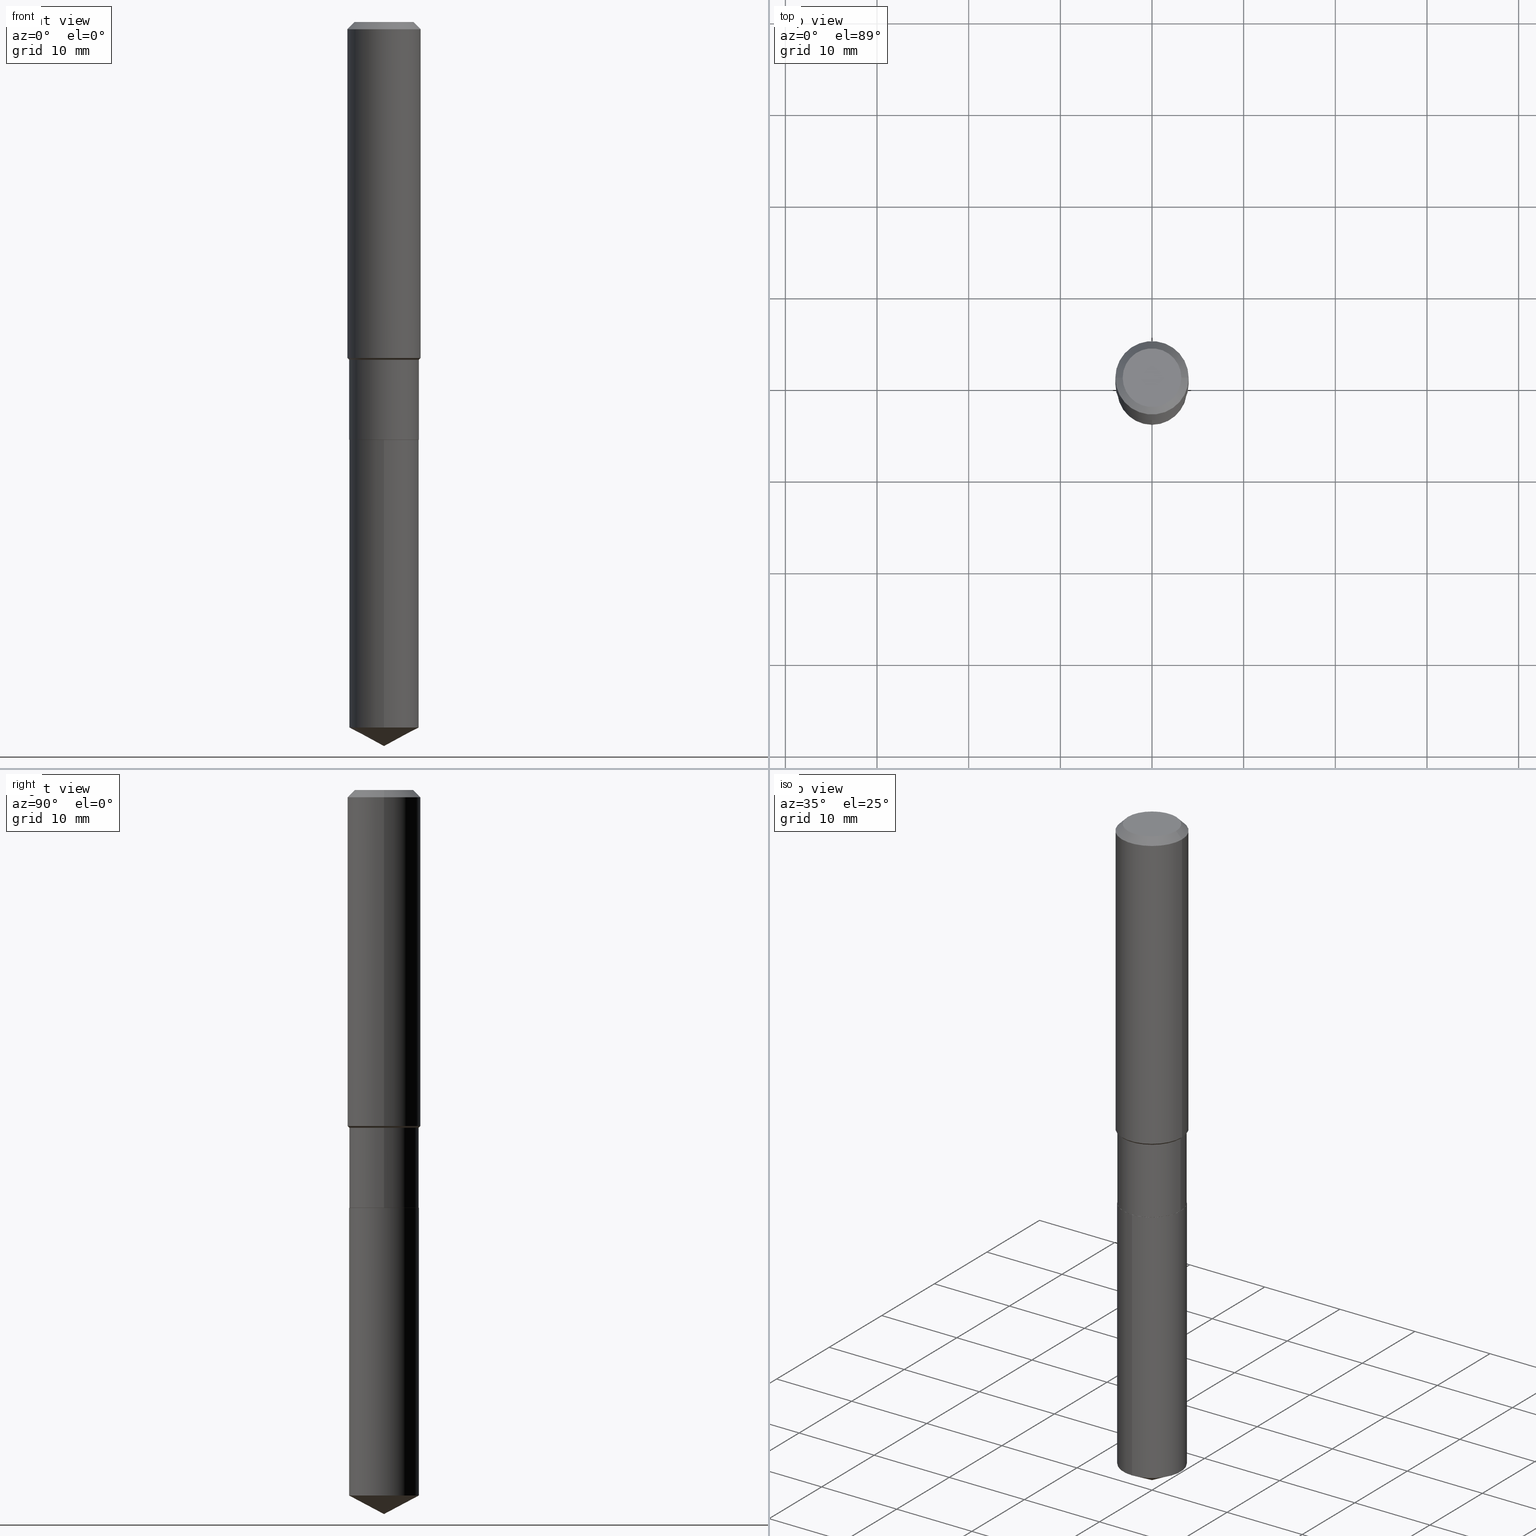
[diagram: canonical four-view strip — front | top / right | iso, engineering-drawing reading convention]
A machine part, canonical four-view strip (front | top / right | iso — engineering-drawing reading convention). The complete STEP part file that produces these views, byte-faithful:
ISO-10303-21;
HEADER;
FILE_DESCRIPTION (( 'STEP AP203' ),
    '1' );
FILE_NAME ('64646.STEP',
    '2024-04-24T18:34:17',
    ( '' ),
    ( '' ),
    'SwSTEP 2.0',
    'SolidWorks 2023',
    '' );
FILE_SCHEMA (( 'CONFIG_CONTROL_DESIGN' ));
ENDSEC;

DATA;
#1 = ORIENTED_EDGE ( 'NONE', *, *, #132, .F. ) ;
#2 = DIRECTION ( 'NONE',  ( -2.445338852307477457E-29, 3.491667440192468911E-15, 1.000000000000000000 ) ) ;
#3 = CARTESIAN_POINT ( 'NONE',  ( 3.548619784655251556E-29, -5.066488570795288817E-15, -1.451100000000000056 ) ) ;
#4 = CIRCLE ( 'NONE', #166, 0.1495999999999999830 ) ;
#5 = ORIENTED_EDGE ( 'NONE', *, *, #50, .F. ) ;
#6 = EDGE_CURVE ( 'NONE', #382, #379, #113, .T. ) ;
#7 = LOCAL_TIME ( 14, 34, 17.00000000000000000, #254 ) ;
#8 = DIRECTION ( 'NONE',  ( -2.438088387897960049E-29, 3.491481338843145188E-15, 1.000000000000000000 ) ) ;
#9 = DIRECTION ( 'NONE',  ( -1.000000000000000000, 6.982962677686265922E-15, 0.000000000000000000 ) ) ;
#10 = ORIENTED_EDGE ( 'NONE', *, *, #334, .T. ) ;
#11 = EDGE_CURVE ( 'NONE', #199, #16, #301, .T. ) ;
#12 = DIRECTION ( 'NONE',  ( -2.445468806185136597E-29, 3.491481338843145583E-15, 1.000000000000000000 ) ) ;
#13 = VERTEX_POINT ( 'NONE', #441 ) ;
#14 = EDGE_CURVE ( 'NONE', #126, #358, #354, .T. ) ;
#15 = CARTESIAN_POINT ( 'NONE',  ( -9.439721640706201686E-47, 1.347742071746726764E-32, 3.860086710912459732E-18 ) ) ;
#16 = VERTEX_POINT ( 'NONE', #341 ) ;
#17 = VERTEX_POINT ( 'NONE', #267 ) ;
#18 = CIRCLE ( 'NONE', #391, 0.1575000000000001676 ) ;
#19 = DIRECTION ( 'NONE',  ( 1.000000000000000000, -6.982962677686265922E-15, 0.000000000000000000 ) ) ;
#20 = PRODUCT_RELATED_PRODUCT_CATEGORY ( 'detail', '', ( #163 ) ) ;
#21 = VERTEX_POINT ( 'NONE', #150 ) ;
#22 = CARTESIAN_POINT ( 'NONE',  ( 7.703226739483226971E-31, -1.099816621735597538E-16, -0.03150000000000019451 ) ) ;
#23 = DIRECTION ( 'NONE',  ( -2.445338852307477457E-29, 3.491667440192468911E-15, 1.000000000000000000 ) ) ;
#24 = EDGE_CURVE ( 'NONE', #471, #17, #307, .T. ) ;
#25 = AXIS2_PLACEMENT_3D ( 'NONE', #249, #416, #326 ) ;
#26 = PERSON_AND_ORGANIZATION ( #194, #220 ) ;
#27 = CC_DESIGN_APPROVAL ( #176, ( #264 ) ) ;
#28 = APPLICATION_PROTOCOL_DEFINITION ( 'international standard', 'config_control_design', 1994, #151 ) ;
#29 = ORIENTED_EDGE ( 'NONE', *, *, #482, .F. ) ;
#30 = VECTOR ( 'NONE', #425, 39.37007874015748143 ) ;
#31 = CONICAL_SURFACE ( 'NONE', #452, 0.1491000000000000103, 0.7853981633978239785 ) ;
#32 = ORIENTED_EDGE ( 'NONE', *, *, #247, .F. ) ;
#33 = ADVANCED_BREP_SHAPE_REPRESENTATION ( '64646', ( #324, #328, #332 ), #432 ) ;
#34 = LINE ( 'NONE', #322, #437 ) ;
#35 = CYLINDRICAL_SURFACE ( 'NONE', #271, 0.1495999999999999830 ) ;
#36 = DIRECTION ( 'NONE',  ( 1.000000000000000000, -6.982962677686267499E-15, 0.000000000000000000 ) ) ;
#37 = AXIS2_PLACEMENT_3D ( 'NONE', #392, #48, #19 ) ;
#38 = ORIENTED_EDGE ( 'NONE', *, *, #69, .T. ) ;
#39 = ADVANCED_FACE ( 'NONE', ( #147 ), #212, .T. ) ;
#40 = CARTESIAN_POINT ( 'NONE',  ( 0.1575000000000000011, -1.209798283909146741E-15, -0.03150000000000019451 ) ) ;
#41 = CARTESIAN_POINT ( 'NONE',  ( 0.1495999999999999830, -6.111139787377153629E-15, -1.451100000000000056 ) ) ;
#42 = EDGE_LOOP ( 'NONE', ( #216, #38, #5 ) ) ;
#43 = DIRECTION ( 'NONE',  ( -2.445468806185136597E-29, 3.491481338843145583E-15, 1.000000000000000000 ) ) ;
#44 = ORIENTED_EDGE ( 'NONE', *, *, #95, .F. ) ;
#45 = APPLICATION_CONTEXT ( 'configuration controlled 3d designs of mechanical parts and assemblies' ) ;
#46 = CC_DESIGN_DATE_AND_TIME_ASSIGNMENT ( #483, #215, ( #264 ) ) ;
#47 = CARTESIAN_POINT ( 'NONE',  ( 0.1496000000000000107, -7.310812775403659002E-15, -1.794700000000000184 ) ) ;
#48 = DIRECTION ( 'NONE',  ( -2.445468806185136597E-29, 3.491481338843145583E-15, 1.000000000000000000 ) ) ;
#49 = CIRCLE ( 'NONE', #180, 0.1496000000000000107 ) ;
#50 = EDGE_CURVE ( 'NONE', #16, #199, #110, .T. ) ;
#51 = DIRECTION ( 'NONE',  ( -2.445468806185136597E-29, 3.491481338843145583E-15, 1.000000000000000000 ) ) ;
#52 = PERSON_AND_ORGANIZATION ( #194, #220 ) ;
#53 = EDGE_CURVE ( 'NONE', #358, #126, #399, .T. ) ;
#54 = DIRECTION ( 'NONE',  ( -6.982962677686265922E-15, -1.000000000000000000, 3.541896320645549825E-15 ) ) ;
#55 = DIRECTION ( 'NONE',  ( 1.000000000000000000, 0.000000000000000000, 0.000000000000000000 ) ) ;
#56 = ADVANCED_FACE ( 'NONE', ( #484 ), #141, .T. ) ;
#57 = AXIS2_PLACEMENT_3D ( 'NONE', #461, #127, #237 ) ;
#58 = UNCERTAINTY_MEASURE_WITH_UNIT (LENGTH_MEASURE( 1.000000000000000082E-05 ), #477, 'distance_accuracy_value', 'NONE');
#59 = DIRECTION ( 'NONE',  ( 0.000000000000000000, 0.000000000000000000, 1.000000000000000000 ) ) ;
#60 = ORIENTED_EDGE ( 'NONE', *, *, #78, .F. ) ;
#61 = PERSON_AND_ORGANIZATION_ROLE ( 'creator' ) ;
#62 = DIRECTION ( 'NONE',  ( 1.000000000000000000, -6.982962677686268288E-15, 0.000000000000000000 ) ) ;
#63 = CARTESIAN_POINT ( 'NONE',  ( 7.411214815833421905E-29, -1.058170972782204081E-14, -3.030656269023443539 ) ) ;
#64 = CONICAL_SURFACE ( 'NONE', #302, 0.1495999999999999830, 0.7853981633974472798 ) ;
#65 = CARTESIAN_POINT ( 'NONE',  ( -1.044651216581821425E-15, -0.1496000000000062835, -1.795199999999999463 ) ) ;
#66 = LOCAL_TIME ( 14, 34, 17.00000000000000000, #225 ) ;
#67 = DIRECTION ( 'NONE',  ( 1.000000000000000000, -6.982962677686267499E-15, 0.000000000000000000 ) ) ;
#68 = ORIENTED_EDGE ( 'NONE', *, *, #71, .T. ) ;
#69 = EDGE_CURVE ( 'NONE', #21, #199, #34, .T. ) ;
#70 = ORIENTED_EDGE ( 'NONE', *, *, #69, .F. ) ;
#71 = EDGE_CURVE ( 'NONE', #428, #347, #400, .T. ) ;
#72 = CLOSED_SHELL ( 'NONE', ( #480, #56, #39, #373, #286 ) ) ;
#73 = VECTOR ( 'NONE', #233, 39.37007874015748143 ) ;
#74 = ORIENTED_EDGE ( 'NONE', *, *, #482, .T. ) ;
#75 = CC_DESIGN_APPROVAL ( #318, ( #144 ) ) ;
#76 = CARTESIAN_POINT ( 'NONE',  ( 4.390105600863557446E-29, -6.267907299491214904E-15, -1.795200000000000129 ) ) ;
#77 = ORIENTED_EDGE ( 'NONE', *, *, #190, .F. ) ;
#78 = EDGE_CURVE ( 'NONE', #16, #347, #172, .T. ) ;
#79 = LINE ( 'NONE', #81, #30 ) ;
#80 = DIRECTION ( 'NONE',  ( 1.000000000000000000, -6.982962677686262766E-15, 0.000000000000000000 ) ) ;
#81 = CARTESIAN_POINT ( 'NONE',  ( -0.1495999999999999830, 1.062971932697109757E-15, -7.358726895021338760E-30 ) ) ;
#82 = AXIS2_PLACEMENT_3D ( 'NONE', #258, #375, #186 ) ;
#83 = DIRECTION ( 'NONE',  ( -2.445468806185136597E-29, 3.491481338843145583E-15, 1.000000000000000000 ) ) ;
#84 = VECTOR ( 'NONE', #378, 39.37007874015748143 ) ;
#85 = ORIENTED_EDGE ( 'NONE', *, *, #53, .T. ) ;
#86 = PRODUCT_DEFINITION_SHAPE ( 'NONE', 'NONE',  #264 ) ;
#87 = LINE ( 'NONE', #134, #174 ) ;
#88 = ORIENTED_EDGE ( 'NONE', *, *, #6, .F. ) ;
#89 = CC_DESIGN_PERSON_AND_ORGANIZATION_ASSIGNMENT ( #52, #208, ( #144 ) ) ;
#90 = FACE_OUTER_BOUND ( 'NONE', #402, .T. ) ;
#91 = ORIENTED_EDGE ( 'NONE', *, *, #14, .F. ) ;
#92 = CARTESIAN_POINT ( 'NONE',  ( 0.1575000000000001676, -6.138722489954014174E-15, -1.443199999999999816 ) ) ;
#93 = ORIENTED_EDGE ( 'NONE', *, *, #300, .T. ) ;
#94 = CONICAL_SURFACE ( 'NONE', #137, 0.1495999999999999830, 0.7853981633974472798 ) ;
#95 = EDGE_CURVE ( 'NONE', #116, #464, #274, .T. ) ;
#96 = DIRECTION ( 'NONE',  ( -6.982962677686265922E-15, -1.000000000000000000, 3.652203200085913145E-15 ) ) ;
#97 = COORDINATED_UNIVERSAL_TIME_OFFSET ( 5, 0, .BEHIND. ) ;
#98 = CC_DESIGN_PERSON_AND_ORGANIZATION_ASSIGNMENT ( #246, #250, ( #99 ) ) ;
#99 = PRODUCT_DEFINITION_FORMATION_WITH_SPECIFIED_SOURCE ( 'ANY', '', #163, .NOT_KNOWN. ) ;
#100 = FACE_OUTER_BOUND ( 'NONE', #350, .T. ) ;
#101 =( NAMED_UNIT ( * ) SI_UNIT ( $, .STERADIAN. ) SOLID_ANGLE_UNIT ( ) );
#102 = EDGE_LOOP ( 'NONE', ( #70, #251, #435 ) ) ;
#103 = VECTOR ( 'NONE', #130, 39.37007874015748143 ) ;
#104 = APPROVAL_ROLE ( '' ) ;
#105 = ORIENTED_EDGE ( 'NONE', *, *, #178, .T. ) ;
#106 = PERSON_AND_ORGANIZATION_ROLE ( 'design_supplier' ) ;
#107 = DIRECTION ( 'NONE',  ( -2.445338852307477457E-29, 3.491667440192468911E-15, 1.000000000000000000 ) ) ;
#108 = DIRECTION ( 'NONE',  ( -1.000000000000000000, 6.982962677686265922E-15, -4.876176775795935793E-29 ) ) ;
#109 = DIRECTION ( 'NONE',  ( -6.982962677686265922E-15, -1.000000000000000000, 3.652203200085913145E-15 ) ) ;
#110 = CIRCLE ( 'NONE', #340, 0.1496000000000000107 ) ;
#111 = CIRCLE ( 'NONE', #280, 0.1575000000000001676 ) ;
#112 = DIRECTION ( 'NONE',  ( -2.445338852307477177E-29, 3.491667440192468911E-15, 1.000000000000000000 ) ) ;
#113 = LINE ( 'NONE', #377, #295 ) ;
#114 = COORDINATED_UNIVERSAL_TIME_OFFSET ( 5, 0, .BEHIND. ) ;
#115 = FACE_OUTER_BOUND ( 'NONE', #453, .T. ) ;
#116 = VERTEX_POINT ( 'NONE', #287 ) ;
#117 = ORIENTED_EDGE ( 'NONE', *, *, #178, .F. ) ;
#118 = AXIS2_PLACEMENT_3D ( 'NONE', #442, #371, #108 ) ;
#119 = DIRECTION ( 'NONE',  ( -2.445338852307477457E-29, 3.491667440192468911E-15, 1.000000000000000000 ) ) ;
#120 = EDGE_CURVE ( 'NONE', #116, #447, #185, .T. ) ;
#121 = DIRECTION ( 'NONE',  ( -6.982962677686265922E-15, -1.000000000000000000, 3.652203200085913145E-15 ) ) ;
#122 = CARTESIAN_POINT ( 'NONE',  ( 3.548619784655251556E-29, -5.066488570795288817E-15, -1.451100000000000056 ) ) ;
#123 = ORIENTED_EDGE ( 'NONE', *, *, #190, .T. ) ;
#124 = FACE_OUTER_BOUND ( 'NONE', #369, .T. ) ;
#125 = LINE ( 'NONE', #171, #420 ) ;
#126 = VERTEX_POINT ( 'NONE', #472 ) ;
#127 = DIRECTION ( 'NONE',  ( -2.445468806185136597E-29, 3.491481338843145583E-15, 1.000000000000000000 ) ) ;
#128 = AXIS2_PLACEMENT_3D ( 'NONE', #159, #51, #418 ) ;
#129 = ORIENTED_EDGE ( 'NONE', *, *, #366, .F. ) ;
#130 = DIRECTION ( 'NONE',  ( -0.7071067811865467956, 7.493145998870351005E-15, 0.7071067811865482389 ) ) ;
#131 = EDGE_LOOP ( 'NONE', ( #1, #298, #133, #457 ) ) ;
#132 = EDGE_CURVE ( 'NONE', #279, #464, #430, .T. ) ;
#133 = ORIENTED_EDGE ( 'NONE', *, *, #6, .T. ) ;
#134 = CARTESIAN_POINT ( 'NONE',  ( 7.605963576261052562E-29, -1.085911589420200525E-14, -3.110199999999999854 ) ) ;
#135 = EDGE_LOOP ( 'NONE', ( #265, #170, #234, #29 ) ) ;
#136 = DIRECTION ( 'NONE',  ( -2.445338852307477457E-29, 3.491667440192468911E-15, 1.000000000000000000 ) ) ;
#137 = AXIS2_PLACEMENT_3D ( 'NONE', #314, #43, #387 ) ;
#138 = DIRECTION ( 'NONE',  ( -6.165590087286839185E-15, -0.8829475928589269884, 0.4694715627858908058 ) ) ;
#139 = CARTESIAN_POINT ( 'NONE',  ( 0.000000000000000000, 0.000000000000000000, 0.000000000000000000 ) ) ;
#140 = APPLICATION_PROTOCOL_DEFINITION ( 'international standard', 'config_control_design', 1994, #45 ) ;
#141 = CONICAL_SURFACE ( 'NONE', #218, 74.04434902938376695, 1.082104136236487824 ) ;
#142 = CIRCLE ( 'NONE', #128, 0.1575000000000000011 ) ;
#143 = APPROVAL_ROLE ( '' ) ;
#144 = SECURITY_CLASSIFICATION ( '', '', #395 ) ;
#145 = PERSON_AND_ORGANIZATION ( #194, #220 ) ;
#146 = CARTESIAN_POINT ( 'NONE',  ( -0.1575000000000001676, -3.919801059396268302E-15, -1.443199999999999816 ) ) ;
#147 = FACE_OUTER_BOUND ( 'NONE', #42, .T. ) ;
#148 = VECTOR ( 'NONE', #112, 39.37007874015748143 ) ;
#149 = CARTESIAN_POINT ( 'NONE',  ( 4.390105600863557446E-29, -6.267907299491214904E-15, -1.795200000000000129 ) ) ;
#150 = CARTESIAN_POINT ( 'NONE',  ( 7.605492898446715819E-29, -1.085978407248661735E-14, -3.110199999999999854 ) ) ;
#151 = APPLICATION_CONTEXT ( 'configuration controlled 3d designs of mechanical parts and assemblies' ) ;
#152 = PLANE ( 'NONE',  #213 ) ;
#153 = DIRECTION ( 'NONE',  ( 0.7071067811865467956, -2.468850131082249172E-15, 0.7071067811865482389 ) ) ;
#154 = LINE ( 'NONE', #201, #316 ) ;
#155 = FACE_OUTER_BOUND ( 'NONE', #238, .T. ) ;
#156 = CC_DESIGN_SECURITY_CLASSIFICATION ( #144, ( #99 ) ) ;
#157 = EDGE_CURVE ( 'NONE', #13, #248, #4, .T. ) ;
#158 = CARTESIAN_POINT ( 'NONE',  ( 7.703226739483226971E-31, -1.099816621735597538E-16, -0.03150000000000019451 ) ) ;
#159 = CARTESIAN_POINT ( 'NONE',  ( 7.703226739483226971E-31, -1.099816621735597538E-16, -0.03150000000000019451 ) ) ;
#160 = ORIENTED_EDGE ( 'NONE', *, *, #398, .T. ) ;
#161 = ORIENTED_EDGE ( 'NONE', *, *, #352, .T. ) ;
#162 = CYLINDRICAL_SURFACE ( 'NONE', #253, 0.1496000000000000107 ) ;
#163 = PRODUCT ( '64646', '64646', '', ( #214 ) ) ;
#164 = ORIENTED_EDGE ( 'NONE', *, *, #439, .F. ) ;
#165 = DIRECTION ( 'NONE',  ( -2.445468806185136597E-29, 3.491481338843145583E-15, 1.000000000000000000 ) ) ;
#166 = AXIS2_PLACEMENT_3D ( 'NONE', #3, #210, #386 ) ;
#167 = ORIENTED_EDGE ( 'NONE', *, *, #50, .T. ) ;
#168 = ORIENTED_EDGE ( 'NONE', *, *, #247, .T. ) ;
#169 = FACE_OUTER_BOUND ( 'NONE', #202, .T. ) ;
#170 = ORIENTED_EDGE ( 'NONE', *, *, #14, .T. ) ;
#171 = CARTESIAN_POINT ( 'NONE',  ( 0.1495999999999999830, -1.044651216581865404E-15, 7.294760456590720327E-30 ) ) ;
#172 = LINE ( 'NONE', #228, #84 ) ;
#173 = DIRECTION ( 'NONE',  ( -2.445338852307477457E-29, 3.491667440192468911E-15, 1.000000000000000000 ) ) ;
#174 = VECTOR ( 'NONE', #197, 39.37007874015748143 ) ;
#175 = CARTESIAN_POINT ( 'NONE',  ( 4.390105600863557446E-29, -6.267907299491214904E-15, -1.795200000000000129 ) ) ;
#176 = APPROVAL ( #438, 'UNSPECIFIED' ) ;
#177 = APPROVAL_STATUS ( 'not_yet_approved' ) ;
#178 = EDGE_CURVE ( 'NONE', #13, #382, #433, .T. ) ;
#179 = VECTOR ( 'NONE', #289, 39.37007874015748854 ) ;
#180 = AXIS2_PLACEMENT_3D ( 'NONE', #211, #479, #62 ) ;
#181 = ORIENTED_EDGE ( 'NONE', *, *, #277, .F. ) ;
#182 = ADVANCED_FACE ( 'NONE', ( #100 ), #364, .T. ) ;
#183 = ADVANCED_FACE ( 'NONE', ( #309 ), #306, .T. ) ;
#184 = AXIS2_PLACEMENT_3D ( 'NONE', #449, #411, #257 ) ;
#185 = CIRCLE ( 'NONE', #231, 0.1260000000000000009 ) ;
#186 = DIRECTION ( 'NONE',  ( 1.000000000000000000, -6.982962677686265133E-15, 0.000000000000000000 ) ) ;
#187 = DIRECTION ( 'NONE',  ( -6.982962677686265922E-15, -1.000000000000000000, 3.541896320645549825E-15 ) ) ;
#188 = CARTESIAN_POINT ( 'NONE',  ( -8.866745697006383039E-28, 1.266077720714772856E-13, 36.25987874015748247 ) ) ;
#189 = ORIENTED_EDGE ( 'NONE', *, *, #209, .F. ) ;
#190 = EDGE_CURVE ( 'NONE', #347, #428, #446, .T. ) ;
#191 = AXIS2_PLACEMENT_3D ( 'NONE', #222, #337, #485 ) ;
#192 = CIRCLE ( 'NONE', #355, 0.1495999999999999830 ) ;
#193 = DIRECTION ( 'NONE',  ( -2.445468806185136597E-29, 3.491481338843145583E-15, 1.000000000000000000 ) ) ;
#194 = PERSON ( 'UNSPECIFIED', 'UNSPECIFIED', 'UNSPECIFIED', ('UNSPECIFIED'), ('UNSPECIFIED'), ('UNSPECIFIED') ) ;
#195 = FACE_OUTER_BOUND ( 'NONE', #319, .T. ) ;
#196 = ADVANCED_FACE ( 'NONE', ( #155 ), #64, .T. ) ;
#197 = DIRECTION ( 'NONE',  ( 6.273719981627770021E-15, 0.8829475928589302081, 0.4694715627858845886 ) ) ;
#198 = CARTESIAN_POINT ( 'NONE',  ( -1.044651216581791645E-15, -0.1496000000000106134, -3.030656269023443095 ) ) ;
#199 = VERTEX_POINT ( 'NONE', #198 ) ;
#200 = EDGE_CURVE ( 'NONE', #248, #13, #192, .T. ) ;
#201 = CARTESIAN_POINT ( 'NONE',  ( -0.1491000000000000103, -5.208488080472903876E-15, -1.795199999999999685 ) ) ;
#202 = EDGE_LOOP ( 'NONE', ( #129, #74, #168, #460 ) ) ;
#203 = DIRECTION ( 'NONE',  ( 1.000000000000000000, -6.982962677686266711E-15, 4.876176775795936353E-29 ) ) ;
#204 = CONICAL_SURFACE ( 'NONE', #268, 0.1575000000000000011, 0.7853981633974450594 ) ;
#205 = ORIENTED_EDGE ( 'NONE', *, *, #120, .F. ) ;
#206 = FACE_OUTER_BOUND ( 'NONE', #135, .T. ) ;
#207 = CARTESIAN_POINT ( 'NONE',  ( -9.439721640706201686E-47, 1.347742071746726764E-32, 3.860086710912459732E-18 ) ) ;
#208 = PERSON_AND_ORGANIZATION_ROLE ( 'classification_officer' ) ;
#209 = EDGE_CURVE ( 'NONE', #382, #279, #111, .T. ) ;
#210 = DIRECTION ( 'NONE',  ( -2.445468806185136597E-29, 3.491481338843145583E-15, 1.000000000000000000 ) ) ;
#211 = CARTESIAN_POINT ( 'NONE',  ( 4.388882866460465205E-29, -6.266161558821793401E-15, -1.794700000000000184 ) ) ;
#212 = CONICAL_SURFACE ( 'NONE', #486, 74.04434902938376695, 1.082104136236487824 ) ;
#213 = AXIS2_PLACEMENT_3D ( 'NONE', #149, #259, #336 ) ;
#214 = MECHANICAL_CONTEXT ( 'NONE', #151, 'mechanical' ) ;
#215 = DATE_TIME_ROLE ( 'creation_date' ) ;
#216 = ORIENTED_EDGE ( 'NONE', *, *, #436, .F. ) ;
#217 = ORIENTED_EDGE ( 'NONE', *, *, #78, .T. ) ;
#218 = AXIS2_PLACEMENT_3D ( 'NONE', #188, #136, #54 ) ;
#219 = CARTESIAN_POINT ( 'NONE',  ( 3.529300581086388319E-29, -5.038905868218426694E-15, -1.443199999999999816 ) ) ;
#220 = ORGANIZATION ( 'UNSPECIFIED', 'UNSPECIFIED', '' ) ;
#221 = LINE ( 'NONE', #487, #488 ) ;
#222 = CARTESIAN_POINT ( 'NONE',  ( 4.388882866460465205E-29, -6.266161558821793401E-15, -1.794700000000000184 ) ) ;
#223 = DIRECTION ( 'NONE',  ( -2.445338852307477457E-29, 3.491667440192468911E-15, 1.000000000000000000 ) ) ;
#224 = AXIS2_PLACEMENT_3D ( 'NONE', #345, #8, #421 ) ;
#225 = COORDINATED_UNIVERSAL_TIME_OFFSET ( 5, 0, .BEHIND. ) ;
#226 = DIRECTION ( 'NONE',  ( -2.445468806185136877E-29, 3.491481338843145188E-15, 1.000000000000000000 ) ) ;
#227 = APPROVAL_PERSON_ORGANIZATION ( #26, #370, #143 ) ;
#228 = CARTESIAN_POINT ( 'NONE',  ( 1.062971932697153736E-15, 0.1495999999999937380, -1.795200000000000573 ) ) ;
#229 = FACE_OUTER_BOUND ( 'NONE', #403, .T. ) ;
#230 = DIRECTION ( 'NONE',  ( 1.000000000000000000, -6.982962677686262766E-15, 0.000000000000000000 ) ) ;
#231 = AXIS2_PLACEMENT_3D ( 'NONE', #207, #290, #342 ) ;
#232 = CARTESIAN_POINT ( 'NONE',  ( 4.390105600863556886E-29, -6.267907299491213327E-15, -1.795199999999999685 ) ) ;
#233 = DIRECTION ( 'NONE',  ( -2.445468806185136877E-29, 3.491481338843145188E-15, 1.000000000000000000 ) ) ;
#234 = ORIENTED_EDGE ( 'NONE', *, *, #277, .T. ) ;
#235 = APPROVAL_PERSON_ORGANIZATION ( #293, #176, #104 ) ;
#236 = ADVANCED_FACE ( 'NONE', ( #195 ), #204, .T. ) ;
#237 = DIRECTION ( 'NONE',  ( 1.000000000000000000, -6.982962677686266711E-15, 4.876176775795936353E-29 ) ) ;
#238 = EDGE_LOOP ( 'NONE', ( #388, #160, #189, #117 ) ) ;
#239 = CARTESIAN_POINT ( 'NONE',  ( 0.1491000000000000103, -7.309067034734236709E-15, -1.795199999999999685 ) ) ;
#240 = CARTESIAN_POINT ( 'NONE',  ( 0.1260000000000000009, -1.027466422270894443E-15, 3.860086710919128072E-18 ) ) ;
#241 = EDGE_LOOP ( 'NONE', ( #60, #167, #93, #77 ) ) ;
#242 = DIRECTION ( 'NONE',  ( 1.000000000000000000, -6.982962677686267499E-15, 4.876176775795936353E-29 ) ) ;
#243 = AXIS2_PLACEMENT_3D ( 'NONE', #313, #413, #451 ) ;
#244 = AXIS2_PLACEMENT_3D ( 'NONE', #175, #173, #361 ) ;
#245 = DIRECTION ( 'NONE',  ( -2.445468806185136597E-29, 3.491481338843145583E-15, 1.000000000000000000 ) ) ;
#246 = PERSON_AND_ORGANIZATION ( #194, #220 ) ;
#247 = EDGE_CURVE ( 'NONE', #471, #13, #125, .T. ) ;
#248 = VERTEX_POINT ( 'NONE', #459 ) ;
#249 = CARTESIAN_POINT ( 'NONE',  ( 4.390105600863556886E-29, -6.267907299491213327E-15, -1.795199999999999685 ) ) ;
#250 = PERSON_AND_ORGANIZATION_ROLE ( 'creator' ) ;
#251 = ORIENTED_EDGE ( 'NONE', *, *, #436, .T. ) ;
#252 =( NAMED_UNIT ( * ) PLANE_ANGLE_UNIT ( ) SI_UNIT ( $, .RADIAN. ) );
#253 = AXIS2_PLACEMENT_3D ( 'NONE', #273, #2, #121 ) ;
#254 = COORDINATED_UNIVERSAL_TIME_OFFSET ( 5, 0, .BEHIND. ) ;
#255 = DESIGN_CONTEXT ( 'detailed design', #45, 'design' ) ;
#256 =( LENGTH_UNIT ( ) NAMED_UNIT ( * ) SI_UNIT ( $, .METRE. ) );
#257 = DIRECTION ( 'NONE',  ( 1.000000000000000000, -6.982962677686265133E-15, 0.000000000000000000 ) ) ;
#258 = CARTESIAN_POINT ( 'NONE',  ( 4.390105600863556886E-29, -6.267907299491213327E-15, -1.795199999999999685 ) ) ;
#259 = DIRECTION ( 'NONE',  ( 2.445338852307477177E-29, -3.491667440192468911E-15, -1.000000000000000000 ) ) ;
#260 = LOCAL_TIME ( 14, 34, 17.00000000000000000, #401 ) ;
#261 = EDGE_LOOP ( 'NONE', ( #469, #91 ) ) ;
#262 = DIRECTION ( 'NONE',  ( 0.7071067811865452413, -7.319954787623248157E-15, -0.7071067811865497932 ) ) ;
#263 = ORIENTED_EDGE ( 'NONE', *, *, #272, .T. ) ;
#264 = PRODUCT_DEFINITION ( 'UNKNOWN', '', #99, #255 ) ;
#265 = ORIENTED_EDGE ( 'NONE', *, *, #383, .F. ) ;
#266 = CALENDAR_DATE ( 2024, 24, 4 ) ;
#267 = CARTESIAN_POINT ( 'NONE',  ( -0.1496000000000000107, -4.603353132111431549E-15, -1.794700000000000184 ) ) ;
#268 = AXIS2_PLACEMENT_3D ( 'NONE', #22, #346, #9 ) ;
#269 = FACE_OUTER_BOUND ( 'NONE', #294, .T. ) ;
#270 = DIRECTION ( 'NONE',  ( -6.982962677686265922E-15, -1.000000000000000000, 3.652203200085913145E-15 ) ) ;
#271 = AXIS2_PLACEMENT_3D ( 'NONE', #348, #193, #203 ) ;
#272 = EDGE_CURVE ( 'NONE', #379, #464, #142, .T. ) ;
#273 = CARTESIAN_POINT ( 'NONE',  ( 4.390105600863557446E-29, -6.267907299491214904E-15, -1.795200000000000129 ) ) ;
#274 = LINE ( 'NONE', #396, #296 ) ;
#275 = EDGE_LOOP ( 'NONE', ( #409, #426, #304, #88 ) ) ;
#276 = FACE_OUTER_BOUND ( 'NONE', #275, .T. ) ;
#277 = EDGE_CURVE ( 'NONE', #358, #471, #360, .T. ) ;
#278 = CARTESIAN_POINT ( 'NONE',  ( 3.529300581086388319E-29, -5.038905868218426694E-15, -1.443199999999999816 ) ) ;
#279 = VERTEX_POINT ( 'NONE', #146 ) ;
#280 = AXIS2_PLACEMENT_3D ( 'NONE', #278, #381, #36 ) ;
#281 = CARTESIAN_POINT ( 'NONE',  ( -0.1495999999999999830, -4.003516638098179257E-15, -1.451100000000000056 ) ) ;
#282 = DIRECTION ( 'NONE',  ( 1.000000000000000000, -6.982962677686265922E-15, 4.876281427513067258E-29 ) ) ;
#283 = ORIENTED_EDGE ( 'NONE', *, *, #366, .T. ) ;
#284 = CARTESIAN_POINT ( 'NONE',  ( 0.000000000000000000, 0.000000000000000000, 0.000000000000000000 ) ) ;
#285 = ORIENTED_EDGE ( 'NONE', *, *, #200, .T. ) ;
#286 = ADVANCED_FACE ( 'NONE', ( #115 ), #152, .F. ) ;
#287 = CARTESIAN_POINT ( 'NONE',  ( -0.1260000000000000009, 9.348441284752484904E-16, 3.860086710906114178E-18 ) ) ;
#288 = CALENDAR_DATE ( 2024, 24, 4 ) ;
#289 = DIRECTION ( 'NONE',  ( 0.7071067811868130271, -2.468850131085038979E-15, 0.7071067811862817853 ) ) ;
#290 = DIRECTION ( 'NONE',  ( -2.445468806185136597E-29, 3.491481338843145583E-15, 1.000000000000000000 ) ) ;
#291 = CALENDAR_DATE ( 2024, 24, 4 ) ;
#292 = ADVANCED_FACE ( 'NONE', ( #269 ), #299, .F. ) ;
#293 = PERSON_AND_ORGANIZATION ( #194, #220 ) ;
#294 = EDGE_LOOP ( 'NONE', ( #419, #468 ) ) ;
#295 = VECTOR ( 'NONE', #226, 39.37007874015748143 ) ;
#296 = VECTOR ( 'NONE', #476, 39.37007874015748143 ) ;
#297 = DATE_AND_TIME ( #434, #454 ) ;
#298 = ORIENTED_EDGE ( 'NONE', *, *, #329, .T. ) ;
#299 = PLANE ( 'NONE',  #118 ) ;
#300 = EDGE_CURVE ( 'NONE', #199, #428, #405, .T. ) ;
#301 = CIRCLE ( 'NONE', #474, 0.1496000000000000107 ) ;
#302 = AXIS2_PLACEMENT_3D ( 'NONE', #122, #83, #80 ) ;
#303 = DIRECTION ( 'NONE',  ( -6.982962677686265922E-15, -1.000000000000000000, 3.652203200085913145E-15 ) ) ;
#304 = ORIENTED_EDGE ( 'NONE', *, *, #272, .F. ) ;
#305 = APPROVAL_ROLE ( '' ) ;
#306 = CYLINDRICAL_SURFACE ( 'NONE', #243, 0.1575000000000000844 ) ;
#307 = CIRCLE ( 'NONE', #191, 0.1496000000000000107 ) ;
#308 = DIRECTION ( 'NONE',  ( -1.000000000000000000, 6.982962677686265922E-15, 0.000000000000000000 ) ) ;
#309 = FACE_OUTER_BOUND ( 'NONE', #131, .T. ) ;
#310 = LOCAL_TIME ( 14, 34, 17.00000000000000000, #114 ) ;
#311 = ORIENTED_EDGE ( 'NONE', *, *, #334, .F. ) ;
#312 = CARTESIAN_POINT ( 'NONE',  ( 1.062971932697184107E-15, 0.1495999999999937380, -1.795200000000000573 ) ) ;
#313 = CARTESIAN_POINT ( 'NONE',  ( 0.000000000000000000, 0.000000000000000000, 0.000000000000000000 ) ) ;
#314 = CARTESIAN_POINT ( 'NONE',  ( 3.548619784655251556E-29, -5.066488570795288817E-15, -1.451100000000000056 ) ) ;
#315 = ORIENTED_EDGE ( 'NONE', *, *, #157, .F. ) ;
#316 = VECTOR ( 'NONE', #385, 39.37007874015748854 ) ;
#317 = DIRECTION ( 'NONE',  ( 1.000000000000000000, -6.982962677686265133E-15, 0.000000000000000000 ) ) ;
#318 = APPROVAL ( #444, 'UNSPECIFIED' ) ;
#319 = EDGE_LOOP ( 'NONE', ( #311, #205, #406, #161 ) ) ;
#320 = FACE_OUTER_BOUND ( 'NONE', #261, .T. ) ;
#321 = ORIENTED_EDGE ( 'NONE', *, *, #300, .F. ) ;
#322 = CARTESIAN_POINT ( 'NONE',  ( 7.605492898446716940E-29, -1.085978407248661735E-14, -3.110199999999999854 ) ) ;
#323 = PERSON_AND_ORGANIZATION ( #194, #220 ) ;
#324 = MANIFOLD_SOLID_BREP ( 'Body-Move/Copy2[1]', #72 ) ;
#325 = CC_DESIGN_PERSON_AND_ORGANIZATION_ASSIGNMENT ( #397, #106, ( #99 ) ) ;
#326 = DIRECTION ( 'NONE',  ( 1.000000000000000000, -6.982962677686265133E-15, 0.000000000000000000 ) ) ;
#327 = DATE_AND_TIME ( #288, #7 ) ;
#328 = MANIFOLD_SOLID_BREP ( 'Body-Move/Copy2[2]', #365 ) ;
#329 = EDGE_CURVE ( 'NONE', #279, #382, #18, .T. ) ;
#330 = PERSON_AND_ORGANIZATION ( #194, #220 ) ;
#331 = LENGTH_MEASURE_WITH_UNIT ( LENGTH_MEASURE( 0.02539999999999999897 ), #256 );
#332 = AXIS2_PLACEMENT_3D ( 'NONE', #139, #59, #55 ) ;
#333 = DIRECTION ( 'NONE',  ( -2.445338852307477457E-29, 3.491667440192468911E-15, 1.000000000000000000 ) ) ;
#334 = EDGE_CURVE ( 'NONE', #447, #379, #221, .T. ) ;
#335 = DATE_AND_TIME ( #408, #66 ) ;
#336 = DIRECTION ( 'NONE',  ( 6.982962677686265922E-15, 1.000000000000000000, -3.491667440192468911E-15 ) ) ;
#337 = DIRECTION ( 'NONE',  ( -2.445468806185136597E-29, 3.491481338843145583E-15, 1.000000000000000000 ) ) ;
#338 = DIRECTION ( 'NONE',  ( -2.445468806185136597E-29, 3.491481338843145583E-15, 1.000000000000000000 ) ) ;
#339 = ORIENTED_EDGE ( 'NONE', *, *, #329, .F. ) ;
#340 = AXIS2_PLACEMENT_3D ( 'NONE', #489, #107, #303 ) ;
#341 = CARTESIAN_POINT ( 'NONE',  ( 1.062971932697184107E-15, 0.1495999999999894636, -3.030656269023443983 ) ) ;
#342 = DIRECTION ( 'NONE',  ( 1.000000000000000000, -6.982962677686265922E-15, 4.876281427513067258E-29 ) ) ;
#343 = ORIENTED_EDGE ( 'NONE', *, *, #71, .F. ) ;
#344 = CIRCLE ( 'NONE', #37, 0.1575000000000000011 ) ;
#345 = CARTESIAN_POINT ( 'NONE',  ( 6.686949327300660051E-29, -2.978696355006919031E-15, -1.795200000000000129 ) ) ;
#346 = DIRECTION ( 'NONE',  ( 2.445468806185136597E-29, -3.491481338843145583E-15, -1.000000000000000000 ) ) ;
#347 = VERTEX_POINT ( 'NONE', #312 ) ;
#348 = CARTESIAN_POINT ( 'NONE',  ( 0.000000000000000000, 0.000000000000000000, 0.000000000000000000 ) ) ;
#349 = CARTESIAN_POINT ( 'NONE',  ( 3.548619784655251556E-29, -5.066488570795288817E-15, -1.451100000000000056 ) ) ;
#350 = EDGE_LOOP ( 'NONE', ( #85, #351, #443, #181 ) ) ;
#351 = ORIENTED_EDGE ( 'NONE', *, *, #383, .T. ) ;
#352 = EDGE_CURVE ( 'NONE', #464, #379, #344, .T. ) ;
#353 = LINE ( 'NONE', #281, #103 ) ;
#354 = CIRCLE ( 'NONE', #82, 0.1491000000000000103 ) ;
#355 = AXIS2_PLACEMENT_3D ( 'NONE', #349, #245, #230 ) ;
#356 = CYLINDRICAL_SURFACE ( 'NONE', #57, 0.1495999999999999830 ) ;
#357 = ADVANCED_FACE ( 'NONE', ( #90 ), #94, .T. ) ;
#358 = VERTEX_POINT ( 'NONE', #415 ) ;
#359 = ADVANCED_FACE ( 'NONE', ( #169 ), #356, .T. ) ;
#360 = LINE ( 'NONE', #239, #179 ) ;
#361 = DIRECTION ( 'NONE',  ( -6.982962677686265922E-15, -1.000000000000000000, 3.652203200085913145E-15 ) ) ;
#362 = ADVANCED_FACE ( 'NONE', ( #206 ), #31, .T. ) ;
#363 = CARTESIAN_POINT ( 'NONE',  ( -0.1575000000000000844, 1.119104808822158392E-15, -7.747322767151481189E-30 ) ) ;
#364 = CONICAL_SURFACE ( 'NONE', #25, 0.1491000000000000103, 0.7853981633978239785 ) ;
#365 = CLOSED_SHELL ( 'NONE', ( #182, #462, #475, #196, #414, #359, #357, #183, #236, #292, #429, #362 ) ) ;
#366 = EDGE_CURVE ( 'NONE', #17, #248, #79, .T. ) ;
#367 = CIRCLE ( 'NONE', #467, 0.1260000000000000009 ) ;
#368 = DATE_TIME_ROLE ( 'classification_date' ) ;
#369 = EDGE_LOOP ( 'NONE', ( #164, #10, #263, #44 ) ) ;
#370 = APPROVAL ( #177, 'UNSPECIFIED' ) ;
#371 = DIRECTION ( 'NONE',  ( 2.438088387897960049E-29, -3.491481338843145188E-15, -1.000000000000000000 ) ) ;
#372 = CARTESIAN_POINT ( 'NONE',  ( -8.866745697006383039E-28, 1.266077720714772856E-13, 36.25987874015748247 ) ) ;
#373 = ADVANCED_FACE ( 'NONE', ( #466 ), #162, .T. ) ;
#374 = DATE_AND_TIME ( #266, #310 ) ;
#375 = DIRECTION ( 'NONE',  ( -2.445468806185136597E-29, 3.491481338843145583E-15, 1.000000000000000000 ) ) ;
#376 = AXIS2_PLACEMENT_3D ( 'NONE', #76, #23, #96 ) ;
#377 = CARTESIAN_POINT ( 'NONE',  ( 0.1575000000000000844, -1.099816621735587677E-15, 7.679978421878603638E-30 ) ) ;
#378 = DIRECTION ( 'NONE',  ( -2.445338852307477177E-29, 3.491667440192468911E-15, 1.000000000000000000 ) ) ;
#379 = VERTEX_POINT ( 'NONE', #40 ) ;
#380 = PLANE ( 'NONE',  #224 ) ;
#381 = DIRECTION ( 'NONE',  ( -2.445468806185136597E-29, 3.491481338843145583E-15, 1.000000000000000000 ) ) ;
#382 = VERTEX_POINT ( 'NONE', #92 ) ;
#383 = EDGE_CURVE ( 'NONE', #126, #17, #154, .T. ) ;
#384 = AXIS2_PLACEMENT_3D ( 'NONE', #456, #119, #270 ) ;
#385 = DIRECTION ( 'NONE',  ( -0.7071067811868130271, 7.493145998871311837E-15, 0.7071067811862817853 ) ) ;
#386 = DIRECTION ( 'NONE',  ( 1.000000000000000000, -6.982962677686262766E-15, 0.000000000000000000 ) ) ;
#387 = DIRECTION ( 'NONE',  ( 1.000000000000000000, -6.982962677686262766E-15, 0.000000000000000000 ) ) ;
#388 = ORIENTED_EDGE ( 'NONE', *, *, #157, .T. ) ;
#389 = CARTESIAN_POINT ( 'NONE',  ( -0.1575000000000000011, -1.455338956373834684E-15, -0.03150000000000019451 ) ) ;
#390 = ORIENTED_EDGE ( 'NONE', *, *, #11, .T. ) ;
#391 = AXIS2_PLACEMENT_3D ( 'NONE', #219, #338, #67 ) ;
#392 = CARTESIAN_POINT ( 'NONE',  ( 7.703226739483226971E-31, -1.099816621735597538E-16, -0.03150000000000019451 ) ) ;
#393 = APPROVAL_PERSON_ORGANIZATION ( #145, #318, #305 ) ;
#394 = DIRECTION ( 'NONE',  ( -2.445468806185136877E-29, 3.491481338843145188E-15, 1.000000000000000000 ) ) ;
#395 = SECURITY_CLASSIFICATION_LEVEL ( 'unclassified' ) ;
#396 = CARTESIAN_POINT ( 'NONE',  ( -0.1575000000000000011, 9.898349595620272334E-16, -0.03150000000000019451 ) ) ;
#397 = PERSON_AND_ORGANIZATION ( #194, #220 ) ;
#398 = EDGE_CURVE ( 'NONE', #248, #279, #353, .T. ) ;
#399 = CIRCLE ( 'NONE', #184, 0.1491000000000000103 ) ;
#400 = CIRCLE ( 'NONE', #376, 0.1496000000000000107 ) ;
#401 = COORDINATED_UNIVERSAL_TIME_OFFSET ( 5, 0, .BEHIND. ) ;
#402 = EDGE_LOOP ( 'NONE', ( #463, #285, #105, #339 ) ) ;
#403 = EDGE_LOOP ( 'NONE', ( #423, #283, #315, #32 ) ) ;
#404 = CC_DESIGN_PERSON_AND_ORGANIZATION_ASSIGNMENT ( #323, #61, ( #264 ) ) ;
#405 = LINE ( 'NONE', #65, #148 ) ;
#406 = ORIENTED_EDGE ( 'NONE', *, *, #95, .T. ) ;
#407 = AXIS2_PLACEMENT_3D ( 'NONE', #284, #427, #242 ) ;
#408 = CALENDAR_DATE ( 2024, 24, 4 ) ;
#409 = ORIENTED_EDGE ( 'NONE', *, *, #209, .T. ) ;
#410 = SHAPE_DEFINITION_REPRESENTATION ( #86, #33 ) ;
#411 = DIRECTION ( 'NONE',  ( -2.445468806185136597E-29, 3.491481338843145583E-15, 1.000000000000000000 ) ) ;
#412 = CC_DESIGN_PERSON_AND_ORGANIZATION_ASSIGNMENT ( #330, #481, ( #163 ) ) ;
#413 = DIRECTION ( 'NONE',  ( -2.445468806185136597E-29, 3.491481338843145583E-15, 1.000000000000000000 ) ) ;
#414 = ADVANCED_FACE ( 'NONE', ( #229 ), #35, .T. ) ;
#415 = CARTESIAN_POINT ( 'NONE',  ( 0.1491000000000000103, -7.309067034734236709E-15, -1.795199999999999685 ) ) ;
#416 = DIRECTION ( 'NONE',  ( -2.445468806185136597E-29, 3.491481338843145583E-15, 1.000000000000000000 ) ) ;
#417 = CYLINDRICAL_SURFACE ( 'NONE', #407, 0.1575000000000000844 ) ;
#418 = DIRECTION ( 'NONE',  ( 1.000000000000000000, -6.982962677686265922E-15, 0.000000000000000000 ) ) ;
#419 = ORIENTED_EDGE ( 'NONE', *, *, #120, .T. ) ;
#420 = VECTOR ( 'NONE', #394, 39.37007874015748143 ) ;
#421 = DIRECTION ( 'NONE',  ( 1.000000000000000000, -6.982962677686265922E-15, 4.876176775795935793E-29 ) ) ;
#422 = CONICAL_SURFACE ( 'NONE', #448, 0.1575000000000000011, 0.7853981633974450594 ) ;
#423 = ORIENTED_EDGE ( 'NONE', *, *, #24, .T. ) ;
#424 = EDGE_LOOP ( 'NONE', ( #390, #217, #343, #321 ) ) ;
#425 = DIRECTION ( 'NONE',  ( -2.445468806185136877E-29, 3.491481338843145188E-15, 1.000000000000000000 ) ) ;
#426 = ORIENTED_EDGE ( 'NONE', *, *, #132, .T. ) ;
#427 = DIRECTION ( 'NONE',  ( -2.445468806185136597E-29, 3.491481338843145583E-15, 1.000000000000000000 ) ) ;
#428 = VERTEX_POINT ( 'NONE', #470 ) ;
#429 = ADVANCED_FACE ( 'NONE', ( #320 ), #380, .F. ) ;
#430 = LINE ( 'NONE', #363, #73 ) ;
#431 = APPROVAL_DATE_TIME ( #327, #176 ) ;
#432 =( GEOMETRIC_REPRESENTATION_CONTEXT ( 3 ) GLOBAL_UNCERTAINTY_ASSIGNED_CONTEXT ( ( #58 ) ) GLOBAL_UNIT_ASSIGNED_CONTEXT ( ( #477, #252, #101 ) ) REPRESENTATION_CONTEXT ( 'NONE', 'WORKASPACE' ) );
#433 = LINE ( 'NONE', #41, #465 ) ;
#434 = CALENDAR_DATE ( 2024, 24, 4 ) ;
#435 = ORIENTED_EDGE ( 'NONE', *, *, #11, .F. ) ;
#436 = EDGE_CURVE ( 'NONE', #21, #16, #87, .T. ) ;
#437 = VECTOR ( 'NONE', #138, 39.37007874015748854 ) ;
#438 = APPROVAL_STATUS ( 'not_yet_approved' ) ;
#439 = EDGE_CURVE ( 'NONE', #447, #116, #367, .T. ) ;
#440 = APPROVAL_DATE_TIME ( #297, #370 ) ;
#441 = CARTESIAN_POINT ( 'NONE',  ( 0.1495999999999999830, -6.111139787377153629E-15, -1.451100000000000056 ) ) ;
#442 = CARTESIAN_POINT ( 'NONE',  ( -4.719860820353100843E-47, 6.738710358733633822E-33, 1.930043355456229866E-18 ) ) ;
#443 = ORIENTED_EDGE ( 'NONE', *, *, #24, .F. ) ;
#444 = APPROVAL_STATUS ( 'not_yet_approved' ) ;
#445 = DIMENSIONAL_EXPONENTS ( 1.000000000000000000, 0.000000000000000000, 0.000000000000000000, 0.000000000000000000, 0.000000000000000000, 0.000000000000000000, 0.000000000000000000 ) ;
#446 = CIRCLE ( 'NONE', #384, 0.1496000000000000107 ) ;
#447 = VERTEX_POINT ( 'NONE', #240 ) ;
#448 = AXIS2_PLACEMENT_3D ( 'NONE', #158, #458, #308 ) ;
#449 = CARTESIAN_POINT ( 'NONE',  ( 4.390105600863556886E-29, -6.267907299491213327E-15, -1.795199999999999685 ) ) ;
#450 = APPROVAL_DATE_TIME ( #335, #318 ) ;
#451 = DIRECTION ( 'NONE',  ( 1.000000000000000000, -6.982962677686267499E-15, 4.876176775795936353E-29 ) ) ;
#452 = AXIS2_PLACEMENT_3D ( 'NONE', #232, #12, #317 ) ;
#453 = EDGE_LOOP ( 'NONE', ( #68, #123 ) ) ;
#454 = LOCAL_TIME ( 14, 34, 17.00000000000000000, #97 ) ;
#455 = FACE_OUTER_BOUND ( 'NONE', #424, .T. ) ;
#456 = CARTESIAN_POINT ( 'NONE',  ( 4.390105600863557446E-29, -6.267907299491214904E-15, -1.795200000000000129 ) ) ;
#457 = ORIENTED_EDGE ( 'NONE', *, *, #352, .F. ) ;
#458 = DIRECTION ( 'NONE',  ( 2.445468806185136597E-29, -3.491481338843145583E-15, -1.000000000000000000 ) ) ;
#459 = CARTESIAN_POINT ( 'NONE',  ( -0.1495999999999999830, -4.603353132111431549E-15, -1.451100000000000056 ) ) ;
#460 = ORIENTED_EDGE ( 'NONE', *, *, #200, .F. ) ;
#461 = CARTESIAN_POINT ( 'NONE',  ( 0.000000000000000000, 0.000000000000000000, 0.000000000000000000 ) ) ;
#462 = ADVANCED_FACE ( 'NONE', ( #124 ), #422, .T. ) ;
#463 = ORIENTED_EDGE ( 'NONE', *, *, #398, .F. ) ;
#464 = VERTEX_POINT ( 'NONE', #389 ) ;
#465 = VECTOR ( 'NONE', #153, 39.37007874015748143 ) ;
#466 = FACE_OUTER_BOUND ( 'NONE', #241, .T. ) ;
#467 = AXIS2_PLACEMENT_3D ( 'NONE', #15, #165, #282 ) ;
#468 = ORIENTED_EDGE ( 'NONE', *, *, #439, .T. ) ;
#469 = ORIENTED_EDGE ( 'NONE', *, *, #53, .F. ) ;
#470 = CARTESIAN_POINT ( 'NONE',  ( -1.044651216581821425E-15, -0.1496000000000062835, -1.795199999999999463 ) ) ;
#471 = VERTEX_POINT ( 'NONE', #47 ) ;
#472 = CARTESIAN_POINT ( 'NONE',  ( -0.1491000000000000103, -5.205838853298793464E-15, -1.795199999999999685 ) ) ;
#473 = CYLINDRICAL_SURFACE ( 'NONE', #244, 0.1496000000000000107 ) ;
#474 = AXIS2_PLACEMENT_3D ( 'NONE', #63, #223, #109 ) ;
#475 = ADVANCED_FACE ( 'NONE', ( #276 ), #417, .T. ) ;
#476 = DIRECTION ( 'NONE',  ( -0.7071067811865452413, 2.468850131082233000E-15, -0.7071067811865497932 ) ) ;
#477 =( CONVERSION_BASED_UNIT ( 'INCH', #331 ) LENGTH_UNIT ( ) NAMED_UNIT ( #445 ) );
#478 = CC_DESIGN_APPROVAL ( #370, ( #99 ) ) ;
#479 = DIRECTION ( 'NONE',  ( -2.445468806185136597E-29, 3.491481338843145583E-15, 1.000000000000000000 ) ) ;
#480 = ADVANCED_FACE ( 'NONE', ( #455 ), #473, .T. ) ;
#481 = PERSON_AND_ORGANIZATION_ROLE ( 'design_owner' ) ;
#482 = EDGE_CURVE ( 'NONE', #17, #471, #49, .T. ) ;
#483 = DATE_AND_TIME ( #291, #260 ) ;
#484 = FACE_OUTER_BOUND ( 'NONE', #102, .T. ) ;
#485 = DIRECTION ( 'NONE',  ( 1.000000000000000000, -6.982962677686268288E-15, 0.000000000000000000 ) ) ;
#486 = AXIS2_PLACEMENT_3D ( 'NONE', #372, #333, #187 ) ;
#487 = CARTESIAN_POINT ( 'NONE',  ( 0.1575000000000000011, -1.190510096822576026E-15, -0.03150000000000019451 ) ) ;
#488 = VECTOR ( 'NONE', #262, 39.37007874015748143 ) ;
#489 = CARTESIAN_POINT ( 'NONE',  ( 7.411214815833421905E-29, -1.058170972782204081E-14, -3.030656269023443539 ) ) ;
#490 = CC_DESIGN_DATE_AND_TIME_ASSIGNMENT ( #374, #368, ( #144 ) ) ;
ENDSEC;
END-ISO-10303-21;
